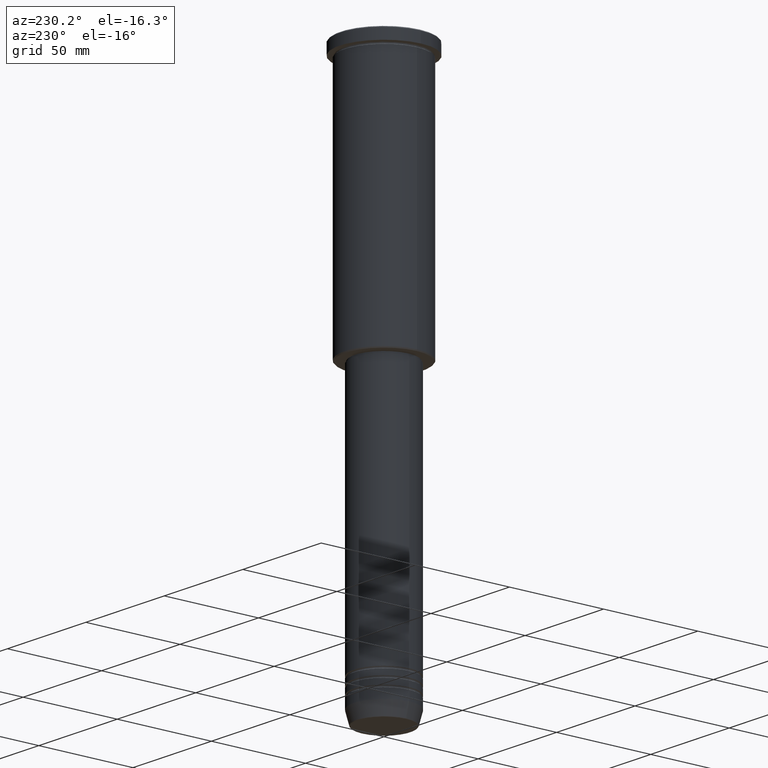
[diagram: clean part render]
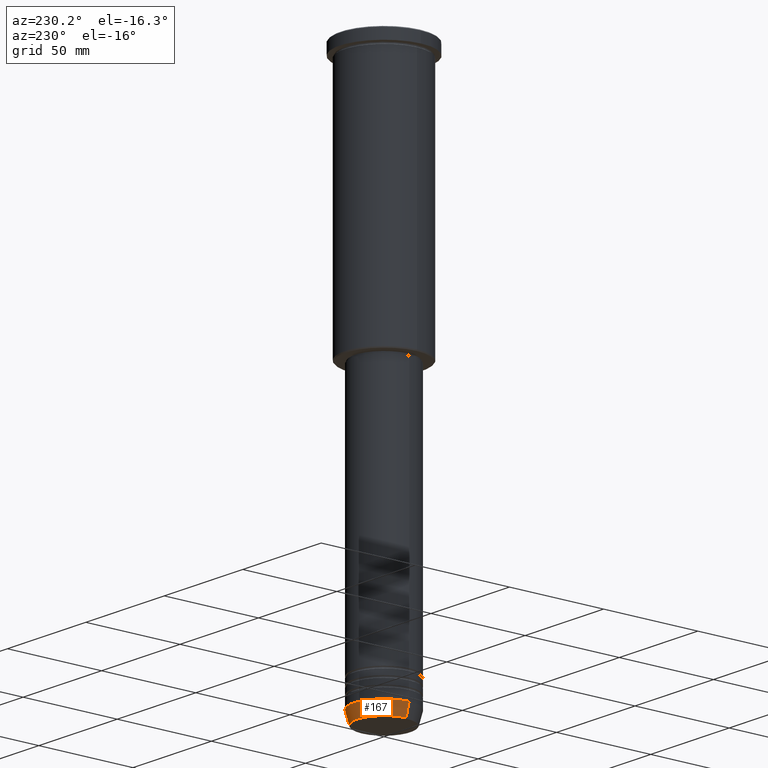
[diagram: same view with one face highlighted and labeled with its STEP entity id]
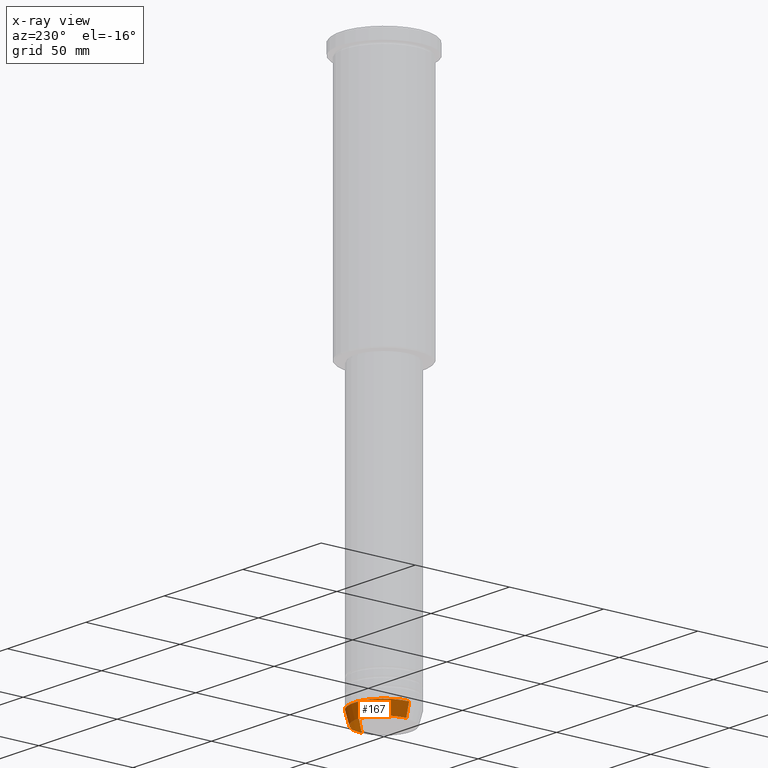
[diagram: x-ray of the same camera — body ghosted, the highlighted face saturated]
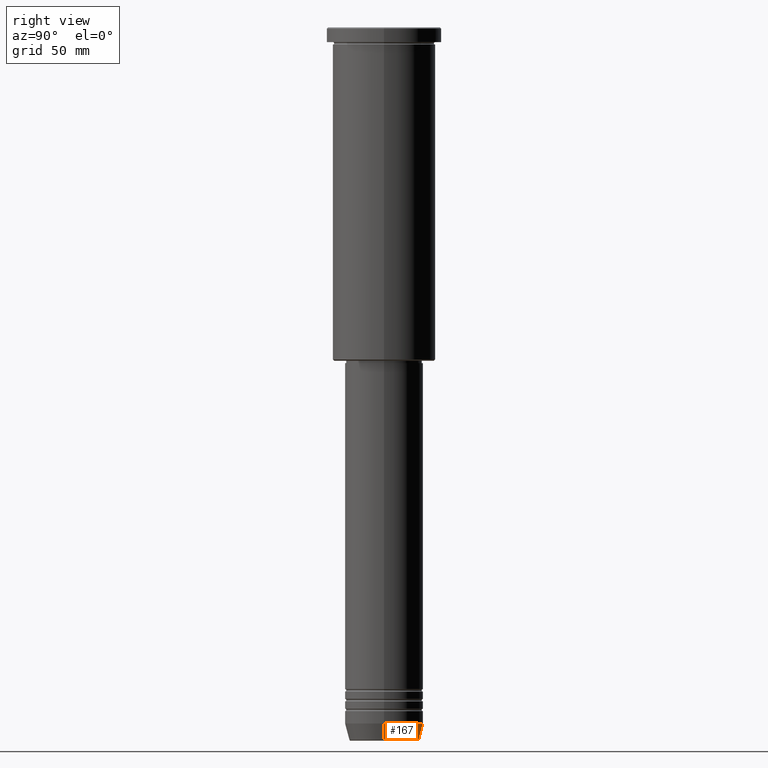
[diagram: same view with one face highlighted and labeled with its STEP entity id]
A machine part, auxiliary view. The second image highlights one B-rep face of the part: STEP entity #167.
The next image is the same camera in x-ray: the body ghosted, the highlighted face saturated — about 0% of this face is hidden behind the body in this view.
A second angle (right view) of the same face is appended — the face is thin or edge-on in the first view.
In plain terms, the highlighted conical surface has half-angle 15 deg.
Its self-contained STEP definition (entity closure, byte-faithful):
#20 = CIRCLE ( 'NONE', #969, 16.00000000000000000 ) ;
#46 = CARTESIAN_POINT ( 'NONE',  ( 16.00000000000000000, 0.000000000000000000, -284.0000000000000568 ) ) ;
#52 = CARTESIAN_POINT ( 'NONE',  ( 0.000000000000000000, 0.000000000000000000, -290.6294095225512706 ) ) ;
#116 = DIRECTION ( 'NONE',  ( -0.000000000000000000, -0.000000000000000000, 1.000000000000000000 ) ) ;
#124 = VERTEX_POINT ( 'NONE', #827 ) ;
#157 = CONICAL_SURFACE ( 'NONE', #176, 16.00000000000000000, 0.2617993877991500740 ) ;
#167 = ADVANCED_FACE ( 'NONE', ( #573 ), #157, .T. ) ;
#170 = CIRCLE ( 'NONE', #967, 14.22365507213718772 ) ;
#176 = AXIS2_PLACEMENT_3D ( 'NONE', #923, #116, #483 ) ;
#198 = DIRECTION ( 'NONE',  ( -0.000000000000000000, -0.000000000000000000, 1.000000000000000000 ) ) ;
#213 = CARTESIAN_POINT ( 'NONE',  ( 0.000000000000000000, 0.000000000000000000, -284.0000000000000568 ) ) ;
#298 = ORIENTED_EDGE ( 'NONE', *, *, #975, .F. ) ;
#312 = DIRECTION ( 'NONE',  ( 1.000000000000000000, 0.000000000000000000, 0.000000000000000000 ) ) ;
#316 = VERTEX_POINT ( 'NONE', #328 ) ;
#328 = CARTESIAN_POINT ( 'NONE',  ( 14.22365507213718772, 0.000000000000000000, -290.6294095225512706 ) ) ;
#330 = DIRECTION ( 'NONE',  ( -0.000000000000000000, -0.000000000000000000, 1.000000000000000000 ) ) ;
#396 = EDGE_LOOP ( 'NONE', ( #576, #1020, #298, #718 ) ) ;
#483 = DIRECTION ( 'NONE',  ( 1.000000000000000000, 0.000000000000000000, 0.000000000000000000 ) ) ;
#499 = VECTOR ( 'NONE', #761, 1000.000000000000000 ) ;
#573 = FACE_OUTER_BOUND ( 'NONE', #396, .T. ) ;
#576 = ORIENTED_EDGE ( 'NONE', *, *, #698, .T. ) ;
#589 = EDGE_CURVE ( 'NONE', #1093, #124, #938, .T. ) ;
#628 = EDGE_CURVE ( 'NONE', #316, #1123, #689, .T. ) ;
#688 = VECTOR ( 'NONE', #1049, 1000.000000000000000 ) ;
#689 = LINE ( 'NONE', #46, #688 ) ;
#698 = EDGE_CURVE ( 'NONE', #316, #1093, #170, .T. ) ;
#718 = ORIENTED_EDGE ( 'NONE', *, *, #628, .F. ) ;
#761 = DIRECTION ( 'NONE',  ( -0.2588190451025213501, 3.169619151431772337E-17, 0.9659258262890680902 ) ) ;
#803 = CARTESIAN_POINT ( 'NONE',  ( 16.00000000000000000, 0.000000000000000000, -284.0000000000000568 ) ) ;
#827 = CARTESIAN_POINT ( 'NONE',  ( -16.00000000000000000, 1.959434878635765131E-15, -284.0000000000000568 ) ) ;
#828 = DIRECTION ( 'NONE',  ( 1.000000000000000000, 0.000000000000000000, 0.000000000000000000 ) ) ;
#915 = CARTESIAN_POINT ( 'NONE',  ( -16.00000000000000000, 1.959434878635765131E-15, -284.0000000000000568 ) ) ;
#923 = CARTESIAN_POINT ( 'NONE',  ( 0.000000000000000000, 0.000000000000000000, -284.0000000000000568 ) ) ;
#938 = LINE ( 'NONE', #915, #499 ) ;
#967 = AXIS2_PLACEMENT_3D ( 'NONE', #52, #330, #312 ) ;
#969 = AXIS2_PLACEMENT_3D ( 'NONE', #213, #198, #828 ) ;
#975 = EDGE_CURVE ( 'NONE', #1123, #124, #20, .T. ) ;
#976 = CARTESIAN_POINT ( 'NONE',  ( -14.22365507213718772, 1.850665122131323337E-15, -290.6294095225512706 ) ) ;
#1020 = ORIENTED_EDGE ( 'NONE', *, *, #589, .T. ) ;
#1049 = DIRECTION ( 'NONE',  ( 0.2588190451025213501, 0.000000000000000000, 0.9659258262890680902 ) ) ;
#1093 = VERTEX_POINT ( 'NONE', #976 ) ;
#1123 = VERTEX_POINT ( 'NONE', #803 ) ;